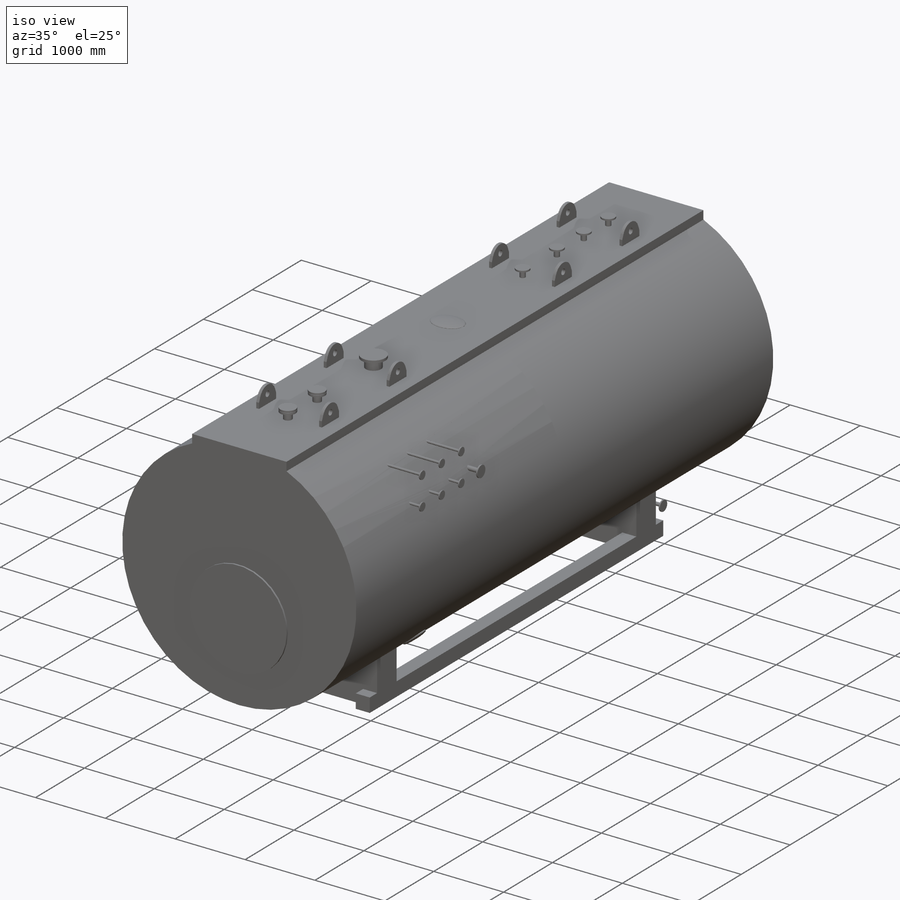
[diagram: iso view]
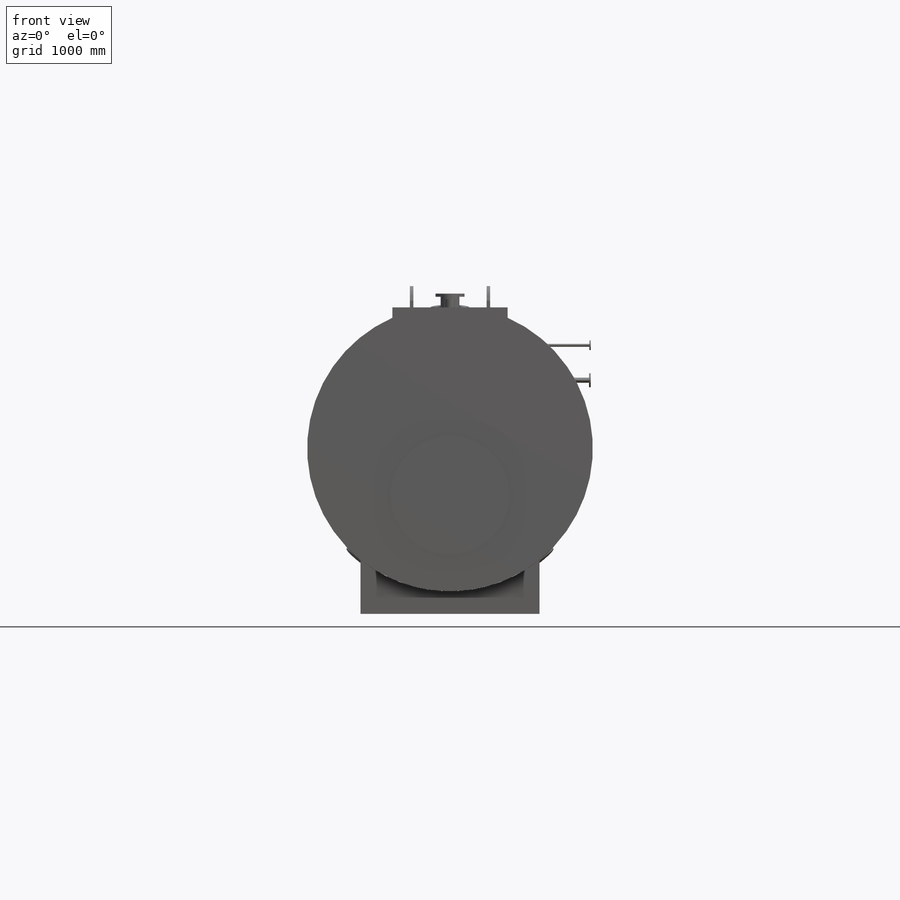
[diagram: front view]
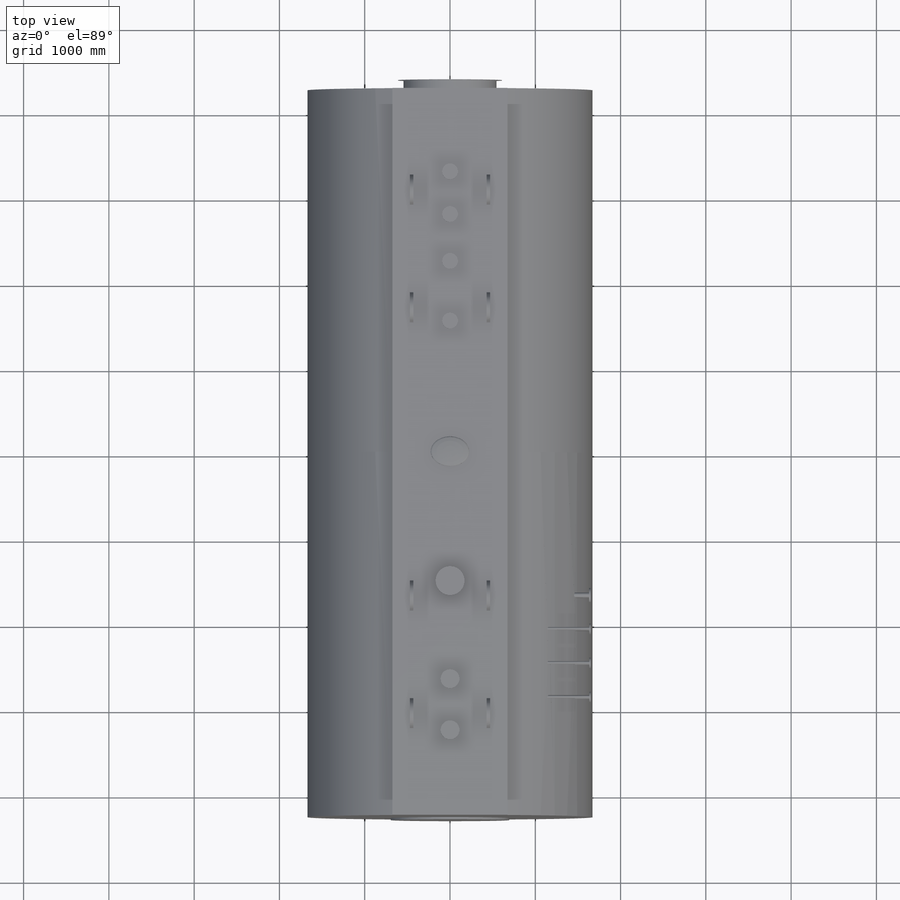
[diagram: top view]
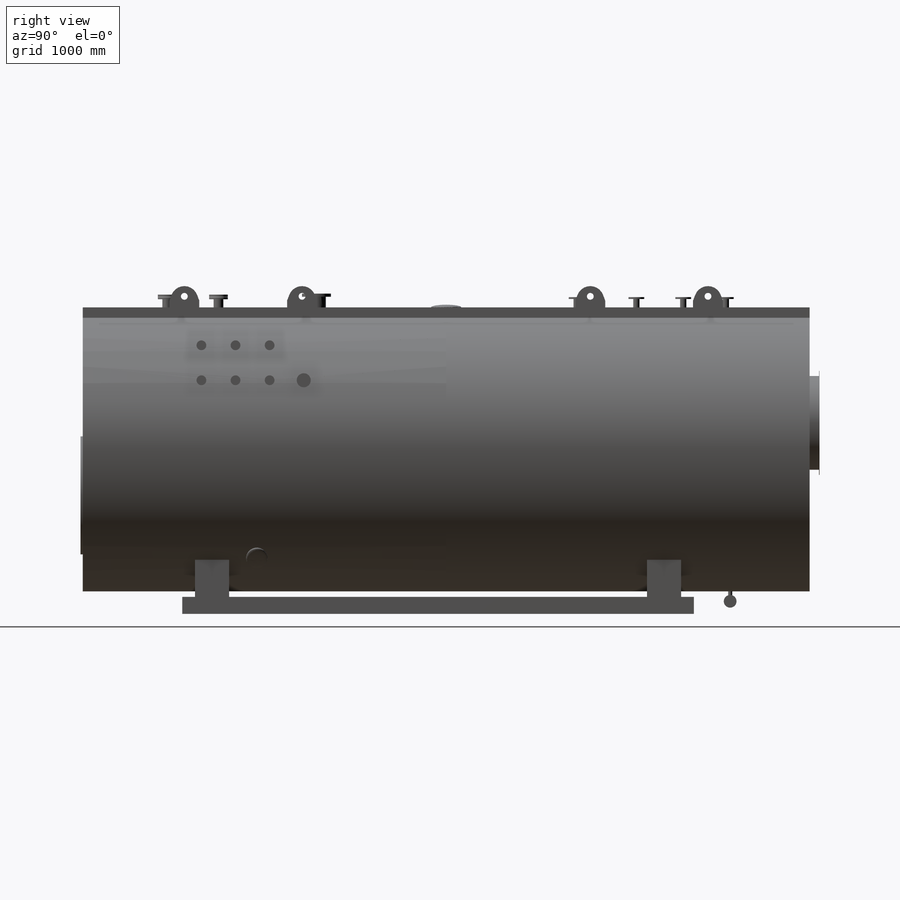
[diagram: right view]
SOLIDWORKS PART (.sldprt)
format: sldprt  version: not decoded by parser v0  size: 825,856 bytes
history: native  units: mm
features: sketch x29, extrude x19, plane x13, cut_extrude x2, material x1, revolve x1, dome x1, sweep x1, mirror x1 + 2 further entries (+17 scaffold rows collapsed; 7 parser-record rows omitted)
feature tree (94):
  scaffold x17  (default folders/planes/origin — collapsed)
  material  "Materiale <non specificato>"
  plane  "Piano frontale"
  plane  "Piano superiore"
  plane  "Piano destro"
  "Asse Y"
  "Asse Z"
  sketch  "Schizzo1"  dims[c1.D1=~82.206908mm c1.D3=3350.0mm c2.D1=1200.0mm c2.D2=1200.0mm c3.D1=1350.0mm c3.D2=1655.0mm]
  extrude  "corpo"  Depth=8524mm
  parser-record x7  (decoder bookkeeping rows leaked as tree rows — omitted from the tree; the rows remain in map.json)
  plane  "Piano5"  Offset=1940mm
  sketch  "Schizzo4"  dims[c1.D1=1200.0mm c1.D3=1200.0mm c1.D2=160.0mm c2.D1=2100.0mm c2.D2=6000.0mm c2.D3=1167.0mm c3.D2=0.0mm c3.D1=200.0mm c3.D5=200.0mm c3.D6=10.0mm c3.D7=5.0mm]
  sketch  "Schizzo18"  dims[D1=0.0mm]
  cut_extrude  "Taglio-Estrusione2"  [1 undecoded]
  sketch  "Schizzo17"  dims[D1=350.0mm D2=400.0mm]
  extrude  "Estrusione-Estrusione15"  [1 undecoded]
  sketch  "Schizzo2"  dims[c1.D1=~548.338917mm c1.D2=1390.0mm c2.D1=865.0mm c2.D3=~1052.722661mm c3.D1=865.0mm c3.D3=~1052.722661mm c4.D1=1390.0mm]
  extrude  "piastra bruciatore"  Depth=25mm
  sketch  "Schizzo3"  dims[c1.D1=1500.0mm c1.D2=1098.0mm c1.D3=5.0mm c1.D4=1220.0mm c1.D5=115.0mm c1.D6=~1753.946116mm c2.D1=1500.0mm c2.D6=~2093.286384mm c3.D1=1500.0mm c3.D6=~2053.82648mm c4.D1=2240.0mm]
  revolve  "attacco camino"  Angle=360deg
  sketch  "Schizzo13"  dims[c1.D1=710.0mm c1.D2=980.0mm c1.D3=~1149.086594mm c2.D2=1130.0mm]
  cut_extrude  "foro tampone"  Depth=200mm
  sketch  "Schizzo5"  dims[c1.D5=33.7mm c1.D7=~71.748263mm c1.D8=60.3mm c2.D5=60.3mm c2.D9=33.7mm c3.D5=60.3mm c3.D1=800.0mm c3.D2=410.0mm c3.D3=400.0mm c3.D4=1392.0mm c3.D6=400.0mm c3.D7=30.0mm]
  extrude  "Estrusione-Estrusione4"  Depth=1650mm
  sketch  "Schizzo6"  dims[c1.D1=105.0mm c1.D2=115.0mm c2.D1=165.0mm]
  extrude  "Estrusione-Estrusione5"  Depth=16mm
  extrude  "Estrusione-Estrusione24"  [1 undecoded]
  sketch  "Schizzo6<3>"  dims[D1=20.0mm]
  plane  "Piano1"  Offset=1775mm
  sketch  "Schizzo8"  dims[c1.D1=73.0mm c1.D2=219.1mm c1.D3=114.3mm c1.D5=76.0mm c1.D6=76.0mm c1.D7=~162.059494mm c1.D8=~162.059494mm c1.D9=60.3mm c2.D5=114.3mm c2.D10=114.3mm c2.D7=88.9mm c2.D11=33.7mm c2.D12=73.0mm c2.D4=992.0mm c3.D5=550.0mm c3.D6=3050.0mm c3.D7=300.0mm c3.D8=500.0mm c4.D5=600.0mm c4.D10=1150.0mm c4.D7=700.0mm c4.D11=550.0mm]
  extrude  "Estrusione-Estrusione6"  [1 undecoded]
  sketch  "Schizzo22"
  extrude  "Estrusione-Estrusione20"  Depth=40mm
  sketch  "Schizzo9"  dims[D1=220.0mm D2=340.0mm D3=185.0mm D4=165.0mm D5=185.0mm]
  extrude  "Estrusione-Estrusione8"  Depth=36mm
  extrude  "Estrusione-Estrusione9"  [1 undecoded]
  sketch  "Schizzo9<3>"  dims[D1=22.0mm]
  extrude  "Estrusione-Estrusione10"  [1 undecoded]
  sketch  "Schizzo9<4>"  dims[D1=26.0mm]
  extrude  "Estrusione-Estrusione16"  [1 undecoded]
  sketch  "Schizzo9<6>"  dims[D1=22.0mm]
  sketch  "Schizzo26"
  extrude  "Estrusione-Estrusione23"  Depth=26mm
  sketch  "Schizzo10"  dims[c1.D3=150.0mm c1.D1=352.0mm c1.D2=452.0mm c2.D3=1520.0mm]
  extrude  "passo d'uomo"  Depth=1mm
  dome  "Cupola1"
  sketch  "Schizzo3D1"  dims[c1.D1=1200.0mm c2.D1=40.0deg c2.D2=4162.0mm c2.D3=2042.0mm c2.D4=2120.0mm]
  plane  "Piano2"
  plane  "Piano6"
  plane  "Piano8"
  plane  "Piano7"
  plane  "Piano9"
  plane  "Piano10"
  sketch  "Schizzo11"  dims[D1=252.0mm D2=352.0mm]
  extrude  "passo di testa 1"  [1 undecoded]
  sketch  "Schizzo19"  dims[D1=252.0mm D2=352.0mm]
  extrude  "Estrusione-Estrusione17"  [1 undecoded]
  sketch  "Schizzo24"  dims[D1=252.0mm D2=352.0mm]
  extrude  "Estrusione-Estrusione21"  [1 undecoded]
  sketch  "Cupola2"  dims[D1=30.0mm]
  sketch  "Cupola3"  dims[D1=30.0mm]
  sketch  "Cupola4"  dims[D1=30.0mm]
  plane  "Piano3"  Offset=932mm
  sketch  "Schizzo14"  dims[c1.D3=50.0mm c1.D1=757.0mm c1.D2=98.0mm c1.D4=~657.34618mm c2.D2=148.0mm]
  plane  "Piano4"
  sketch  "Schizzo15"  dims[D1=48.3mm]
  sweep  "Sweep1"
  sketch  "Schizzo16"  dims[D1=150.0mm]
  extrude  "Estrusione-Estrusione14"  Depth=18mm
  sketch  "Schizzo25"  dims[c1.D3=80.0mm c1.D4=80.0mm c1.D5=160.0mm c1.D6=120.0mm c2.D4=120.0mm c2.D10=80.0mm c2.D7=~68.976712mm c3.D10=80.0mm c3.D1=350.0mm c3.D2=130.0mm c3.D4=200.0mm c3.D6=300.0mm c4.D4=1604.0mm c4.D7=1237.0mm c4.D9=1380.0mm c4.D10=140.0mm c4.D11=185.0mm c4.D3=1192.0mm c5.D7=180.0mm c5.D12=4760.0mm c5.D8=2.0 c5.D11=2.0]
  extrude  "Estrusione-Estrusione22"  Depth=40mm
  mirror  "Specchia1"
decode coverage: 39 of 54 modeling features carry decoded parameters; 2 rows unclassified (native names shown)
note: ~ marks probable driven/reference dimensions
note: 10 parameter values undecoded
summary: no parameter record found for 10 features
note: suppression state not decoded; provenance and decode notes live in map.json
